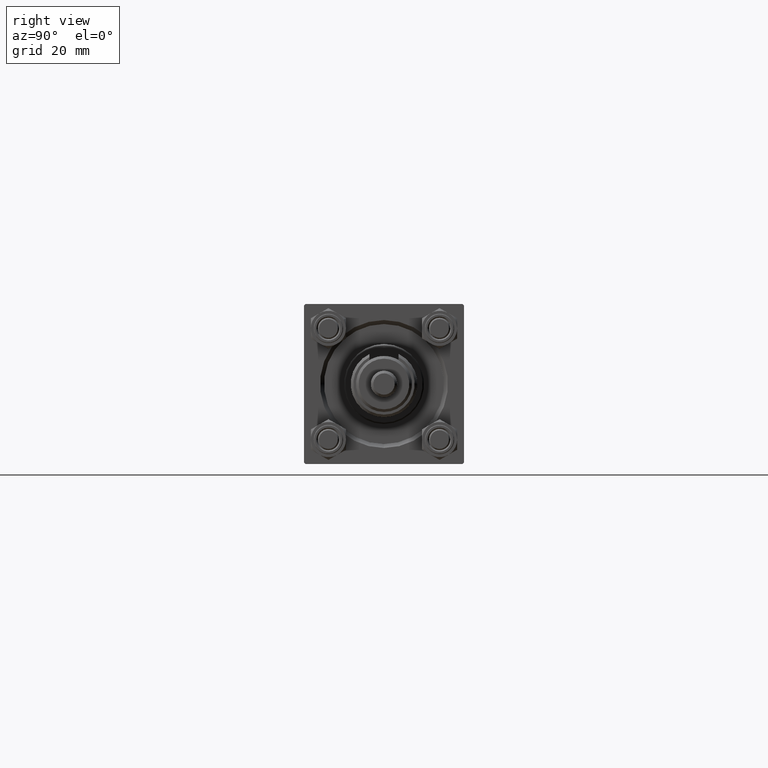
[diagram: clean part render]
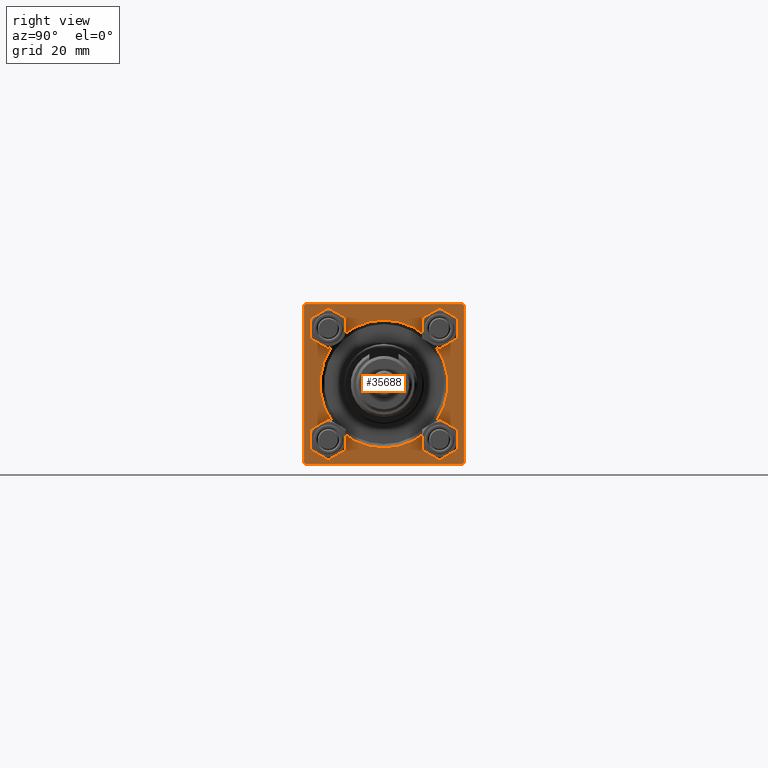
[diagram: same view with one face highlighted and labeled with its STEP entity id]
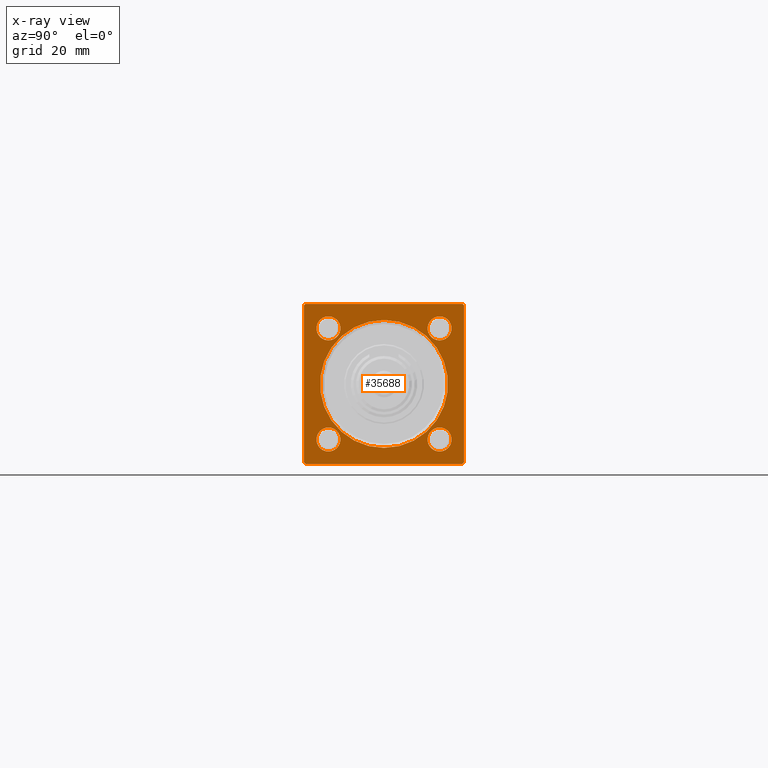
[diagram: x-ray of the same camera — body ghosted, the highlighted face saturated]
A machine part, right view. The second image highlights one B-rep face of the part: STEP entity #35688.
The next image is the same camera in x-ray: the body ghosted, the highlighted face saturated — about 0% of this face is hidden behind the body in this view.
In plain terms, the highlighted planar face has unit normal (-1, 0, 0).
Its self-contained STEP definition (entity closure, byte-faithful):
#6 = VECTOR ( 'NONE', #2890, 1000.000000000000000 ) ;
#231 = DIRECTION ( 'NONE',  ( 0.000000000000000000, 0.000000000000000000, 1.000000000000000000 ) ) ;
#752 = CIRCLE ( 'NONE', #51815, 4.500000000000017764 ) ;
#880 = FACE_OUTER_BOUND ( 'NONE', #17036, .T. ) ;
#1178 = ORIENTED_EDGE ( 'NONE', *, *, #51516, .T. ) ;
#1247 = ORIENTED_EDGE ( 'NONE', *, *, #49751, .T. ) ;
#1608 = EDGE_LOOP ( 'NONE', ( #2438, #12824 ) ) ;
#1668 = VERTEX_POINT ( 'NONE', #22125 ) ;
#1693 = CARTESIAN_POINT ( 'NONE',  ( 148.0000000000000000, 30.00000000000000000, 30.00000000000000000 ) ) ;
#1985 = VERTEX_POINT ( 'NONE', #11122 ) ;
#2055 = ORIENTED_EDGE ( 'NONE', *, *, #8070, .T. ) ;
#2438 = ORIENTED_EDGE ( 'NONE', *, *, #18651, .T. ) ;
#2779 = LINE ( 'NONE', #27803, #5405 ) ;
#2890 = DIRECTION ( 'NONE',  ( 0.000000000000000000, 0.000000000000000000, -1.000000000000000000 ) ) ;
#2899 = AXIS2_PLACEMENT_3D ( 'NONE', #42911, #38909, #4211 ) ;
#3540 = ORIENTED_EDGE ( 'NONE', *, *, #31449, .F. ) ;
#3672 = VERTEX_POINT ( 'NONE', #50950 ) ;
#3993 = ORIENTED_EDGE ( 'NONE', *, *, #41335, .T. ) ;
#4171 = VERTEX_POINT ( 'NONE', #6913 ) ;
#4211 = DIRECTION ( 'NONE',  ( 0.000000000000000000, 0.000000000000000000, 1.000000000000000000 ) ) ;
#4251 = ORIENTED_EDGE ( 'NONE', *, *, #22390, .T. ) ;
#4329 = VERTEX_POINT ( 'NONE', #17261 ) ;
#5393 = FACE_BOUND ( 'NONE', #22812, .T. ) ;
#5405 = VECTOR ( 'NONE', #23808, 1000.000000000000000 ) ;
#6882 = LINE ( 'NONE', #39391, #6 ) ;
#6913 = CARTESIAN_POINT ( 'NONE',  ( 148.0000000000000000, -20.84999999999999076, 16.34999999999998721 ) ) ;
#7591 = CARTESIAN_POINT ( 'NONE',  ( 148.0000000000000000, 20.84999999999999787, 20.85000000000000142 ) ) ;
#8070 = EDGE_CURVE ( 'NONE', #4171, #37276, #752, .T. ) ;
#8307 = CARTESIAN_POINT ( 'NONE',  ( 148.0000000000000000, 30.00000000000000000, -29.49999999999999289 ) ) ;
#8547 = CARTESIAN_POINT ( 'NONE',  ( 148.0000000000000000, -20.84999999999999076, -16.34999999999998721 ) ) ;
#9365 = CARTESIAN_POINT ( 'NONE',  ( 148.0000000000000000, -29.50000000000000000, -30.00000000000000000 ) ) ;
#9571 = AXIS2_PLACEMENT_3D ( 'NONE', #12231, #36994, #231 ) ;
#9663 = CARTESIAN_POINT ( 'NONE',  ( 148.0000000000000000, -30.00000000000000000, 29.49999999999999289 ) ) ;
#10363 = AXIS2_PLACEMENT_3D ( 'NONE', #45132, #20878, #37138 ) ;
#10472 = VECTOR ( 'NONE', #42160, 1000.000000000000114 ) ;
#10758 = AXIS2_PLACEMENT_3D ( 'NONE', #17134, #13674, #38175 ) ;
#10976 = AXIS2_PLACEMENT_3D ( 'NONE', #19153, #26622, #42896 ) ;
#11122 = CARTESIAN_POINT ( 'NONE',  ( 148.0000000000000000, 20.84999999999999787, 16.34999999999998366 ) ) ;
#11573 = EDGE_CURVE ( 'NONE', #51841, #14939, #29844, .T. ) ;
#11866 = DIRECTION ( 'NONE',  ( -1.000000000000000000, 0.000000000000000000, -0.000000000000000000 ) ) ;
#11987 = AXIS2_PLACEMENT_3D ( 'NONE', #33980, #14022, #30255 ) ;
#12124 = DIRECTION ( 'NONE',  ( 0.000000000000000000, 0.000000000000000000, 1.000000000000000000 ) ) ;
#12231 = CARTESIAN_POINT ( 'NONE',  ( 148.0000000000000000, -20.84999999999999076, 20.85000000000000497 ) ) ;
#12593 = DIRECTION ( 'NONE',  ( -1.000000000000000000, 0.000000000000000000, -0.000000000000000000 ) ) ;
#12824 = ORIENTED_EDGE ( 'NONE', *, *, #42423, .T. ) ;
#13182 = EDGE_CURVE ( 'NONE', #1668, #40264, #23784, .T. ) ;
#13214 = AXIS2_PLACEMENT_3D ( 'NONE', #19856, #11866, #12124 ) ;
#13330 = EDGE_LOOP ( 'NONE', ( #2055, #42627 ) ) ;
#13674 = DIRECTION ( 'NONE',  ( -1.000000000000000000, 0.000000000000000000, -0.000000000000000000 ) ) ;
#13736 = CIRCLE ( 'NONE', #10363, 4.500000000000017764 ) ;
#14022 = DIRECTION ( 'NONE',  ( -1.000000000000000000, 0.000000000000000000, -0.000000000000000000 ) ) ;
#14143 = CARTESIAN_POINT ( 'NONE',  ( 148.0000000000000000, -20.84999999999999076, 25.35000000000002274 ) ) ;
#14327 = CARTESIAN_POINT ( 'NONE',  ( 148.0000000000000000, -29.50000000000000000, -30.00000000000000000 ) ) ;
#14366 = AXIS2_PLACEMENT_3D ( 'NONE', #7591, #39583, #28098 ) ;
#14618 = CARTESIAN_POINT ( 'NONE',  ( 148.0000000000000000, 29.50000000000000000, 30.00000000000000000 ) ) ;
#14939 = VERTEX_POINT ( 'NONE', #8547 ) ;
#15295 = EDGE_CURVE ( 'NONE', #37276, #4171, #49552, .T. ) ;
#15762 = ORIENTED_EDGE ( 'NONE', *, *, #45100, .T. ) ;
#15944 = CARTESIAN_POINT ( 'NONE',  ( 148.0000000000000000, -29.50000000000000000, 29.99999999999999289 ) ) ;
#16051 = ORIENTED_EDGE ( 'NONE', *, *, #20311, .T. ) ;
#16988 = CARTESIAN_POINT ( 'NONE',  ( 148.0000000000000000, 20.84999999999999787, -16.34999999999998366 ) ) ;
#17036 = EDGE_LOOP ( 'NONE', ( #50801, #16051, #44522, #44552, #3540, #25960, #1247, #3993 ) ) ;
#17068 = VECTOR ( 'NONE', #50007, 1000.000000000000000 ) ;
#17134 = CARTESIAN_POINT ( 'NONE',  ( 148.0000000000000000, 0.000000000000000000, 0.000000000000000000 ) ) ;
#17261 = CARTESIAN_POINT ( 'NONE',  ( 148.0000000000000000, 0.000000000000000000, -24.00000000000003908 ) ) ;
#17390 = VECTOR ( 'NONE', #50719, 1000.000000000000000 ) ;
#17457 = VERTEX_POINT ( 'NONE', #15944 ) ;
#17946 = LINE ( 'NONE', #1693, #17390 ) ;
#18080 = CARTESIAN_POINT ( 'NONE',  ( 148.0000000000000000, 30.00000000000000000, -29.49999999999997868 ) ) ;
#18651 = EDGE_CURVE ( 'NONE', #4329, #24180, #42033, .T. ) ;
#18786 = CARTESIAN_POINT ( 'NONE',  ( 148.0000000000000000, 0.000000000000000000, 0.000000000000000000 ) ) ;
#18946 = AXIS2_PLACEMENT_3D ( 'NONE', #18786, #27550, #35280 ) ;
#19153 = CARTESIAN_POINT ( 'NONE',  ( 148.0000000000000000, 0.000000000000000000, 0.000000000000000000 ) ) ;
#19191 = VECTOR ( 'NONE', #42872, 1000.000000000000114 ) ;
#19856 = CARTESIAN_POINT ( 'NONE',  ( 148.0000000000000000, 20.84999999999999787, 20.85000000000000142 ) ) ;
#20021 = CARTESIAN_POINT ( 'NONE',  ( 148.0000000000000000, 2.939152317953652628E-15, 24.00000000000003908 ) ) ;
#20311 = EDGE_CURVE ( 'NONE', #51247, #46895, #25088, .T. ) ;
#20381 = CIRCLE ( 'NONE', #27202, 4.500000000000017764 ) ;
#20878 = DIRECTION ( 'NONE',  ( -1.000000000000000000, 0.000000000000000000, -0.000000000000000000 ) ) ;
#21090 = CARTESIAN_POINT ( 'NONE',  ( 148.0000000000000000, -20.84999999999999076, -20.85000000000000497 ) ) ;
#21118 = PLANE ( 'NONE',  #10758 ) ;
#21554 = VERTEX_POINT ( 'NONE', #46621 ) ;
#21753 = DIRECTION ( 'NONE',  ( -0.000000000000000000, -0.7071067811865474617, -0.7071067811865474617 ) ) ;
#21921 = FACE_BOUND ( 'NONE', #13330, .T. ) ;
#22125 = CARTESIAN_POINT ( 'NONE',  ( 148.0000000000000000, 29.50000000000000000, -29.99999999999999289 ) ) ;
#22390 = EDGE_CURVE ( 'NONE', #3672, #43396, #44576, .T. ) ;
#22812 = EDGE_LOOP ( 'NONE', ( #36384, #45155 ) ) ;
#23784 = LINE ( 'NONE', #8307, #45245 ) ;
#23808 = DIRECTION ( 'NONE',  ( 0.000000000000000000, -1.000000000000000000, -1.156482317317871478E-16 ) ) ;
#24180 = VERTEX_POINT ( 'NONE', #20021 ) ;
#25088 = LINE ( 'NONE', #9365, #10472 ) ;
#25960 = ORIENTED_EDGE ( 'NONE', *, *, #30685, .T. ) ;
#26286 = LINE ( 'NONE', #47073, #17068 ) ;
#26622 = DIRECTION ( 'NONE',  ( -1.000000000000000000, 0.000000000000000000, -0.000000000000000000 ) ) ;
#26700 = EDGE_LOOP ( 'NONE', ( #4251, #1178 ) ) ;
#26813 = CARTESIAN_POINT ( 'NONE',  ( 148.0000000000000000, -30.00000000000000000, 29.49999999999999289 ) ) ;
#26950 = EDGE_CURVE ( 'NONE', #1668, #46895, #2779, .T. ) ;
#27202 = AXIS2_PLACEMENT_3D ( 'NONE', #21090, #42162, #38425 ) ;
#27550 = DIRECTION ( 'NONE',  ( -1.000000000000000000, 0.000000000000000000, -0.000000000000000000 ) ) ;
#27800 = DIRECTION ( 'NONE',  ( 0.000000000000000000, 0.000000000000000000, 1.000000000000000000 ) ) ;
#27803 = CARTESIAN_POINT ( 'NONE',  ( 148.0000000000000000, 30.00000000000000000, -29.99999999999999289 ) ) ;
#28098 = DIRECTION ( 'NONE',  ( 0.000000000000000000, 0.000000000000000000, 1.000000000000000000 ) ) ;
#29844 = CIRCLE ( 'NONE', #11987, 4.500000000000017764 ) ;
#29999 = LINE ( 'NONE', #26813, #32162 ) ;
#30255 = DIRECTION ( 'NONE',  ( 0.000000000000000000, 0.000000000000000000, 1.000000000000000000 ) ) ;
#30685 = EDGE_CURVE ( 'NONE', #32021, #21554, #42608, .T. ) ;
#31449 = EDGE_CURVE ( 'NONE', #32021, #40264, #17946, .T. ) ;
#32021 = VERTEX_POINT ( 'NONE', #33990 ) ;
#32162 = VECTOR ( 'NONE', #21753, 1000.000000000000114 ) ;
#32831 = CARTESIAN_POINT ( 'NONE',  ( 148.0000000000000000, -20.84999999999999076, 20.85000000000000497 ) ) ;
#33356 = EDGE_CURVE ( 'NONE', #36315, #1985, #36186, .T. ) ;
#33897 = FACE_BOUND ( 'NONE', #26700, .T. ) ;
#33980 = CARTESIAN_POINT ( 'NONE',  ( 148.0000000000000000, -20.84999999999999076, -20.85000000000000497 ) ) ;
#33990 = CARTESIAN_POINT ( 'NONE',  ( 148.0000000000000000, 30.00000000000000000, 29.50000000000000000 ) ) ;
#35280 = DIRECTION ( 'NONE',  ( 0.000000000000000000, 0.000000000000000000, 1.000000000000000000 ) ) ;
#35294 = CARTESIAN_POINT ( 'NONE',  ( 148.0000000000000000, 20.84999999999999787, 25.35000000000001918 ) ) ;
#35688 = ADVANCED_FACE ( 'NONE', ( #37380, #33897, #5393, #21921, #46439, #880 ), #21118, .F. ) ;
#35769 = VERTEX_POINT ( 'NONE', #9663 ) ;
#36186 = CIRCLE ( 'NONE', #13214, 4.500000000000017764 ) ;
#36315 = VERTEX_POINT ( 'NONE', #35294 ) ;
#36384 = ORIENTED_EDGE ( 'NONE', *, *, #40674, .T. ) ;
#36483 = CIRCLE ( 'NONE', #10976, 24.00000000000003908 ) ;
#36994 = DIRECTION ( 'NONE',  ( -1.000000000000000000, 0.000000000000000000, -0.000000000000000000 ) ) ;
#37138 = DIRECTION ( 'NONE',  ( 0.000000000000000000, 0.000000000000000000, 1.000000000000000000 ) ) ;
#37276 = VERTEX_POINT ( 'NONE', #14143 ) ;
#37380 = FACE_BOUND ( 'NONE', #47995, .T. ) ;
#38175 = DIRECTION ( 'NONE',  ( -0.000000000000000000, 0.000000000000000000, 1.000000000000000000 ) ) ;
#38425 = DIRECTION ( 'NONE',  ( 0.000000000000000000, 0.000000000000000000, 1.000000000000000000 ) ) ;
#38909 = DIRECTION ( 'NONE',  ( -1.000000000000000000, 0.000000000000000000, -0.000000000000000000 ) ) ;
#39391 = CARTESIAN_POINT ( 'NONE',  ( 148.0000000000000000, -30.00000000000000000, 29.99999999999999289 ) ) ;
#39583 = DIRECTION ( 'NONE',  ( -1.000000000000000000, 0.000000000000000000, -0.000000000000000000 ) ) ;
#40264 = VERTEX_POINT ( 'NONE', #18080 ) ;
#40674 = EDGE_CURVE ( 'NONE', #1985, #36315, #48358, .T. ) ;
#41335 = EDGE_CURVE ( 'NONE', #17457, #35769, #29999, .T. ) ;
#42033 = CIRCLE ( 'NONE', #18946, 24.00000000000003908 ) ;
#42160 = DIRECTION ( 'NONE',  ( 0.000000000000000000, 0.7071067811865474617, -0.7071067811865474617 ) ) ;
#42162 = DIRECTION ( 'NONE',  ( -1.000000000000000000, 0.000000000000000000, -0.000000000000000000 ) ) ;
#42423 = EDGE_CURVE ( 'NONE', #24180, #4329, #36483, .T. ) ;
#42608 = LINE ( 'NONE', #14618, #19191 ) ;
#42627 = ORIENTED_EDGE ( 'NONE', *, *, #15295, .T. ) ;
#42872 = DIRECTION ( 'NONE',  ( 0.000000000000000000, -0.7071067811865474617, 0.7071067811865474617 ) ) ;
#42896 = DIRECTION ( 'NONE',  ( 0.000000000000000000, 0.000000000000000000, 1.000000000000000000 ) ) ;
#42911 = CARTESIAN_POINT ( 'NONE',  ( 148.0000000000000000, 20.84999999999999787, -20.85000000000000142 ) ) ;
#43396 = VERTEX_POINT ( 'NONE', #16988 ) ;
#43643 = CARTESIAN_POINT ( 'NONE',  ( 148.0000000000000000, -30.00000000000000000, -29.49999999999998579 ) ) ;
#44522 = ORIENTED_EDGE ( 'NONE', *, *, #26950, .F. ) ;
#44552 = ORIENTED_EDGE ( 'NONE', *, *, #13182, .T. ) ;
#44576 = CIRCLE ( 'NONE', #2899, 4.500000000000017764 ) ;
#45076 = DIRECTION ( 'NONE',  ( -0.000000000000000000, 0.7071067811865474617, 0.7071067811865474617 ) ) ;
#45100 = EDGE_CURVE ( 'NONE', #14939, #51841, #20381, .T. ) ;
#45132 = CARTESIAN_POINT ( 'NONE',  ( 148.0000000000000000, 20.84999999999999787, -20.85000000000000142 ) ) ;
#45155 = ORIENTED_EDGE ( 'NONE', *, *, #33356, .T. ) ;
#45245 = VECTOR ( 'NONE', #45076, 1000.000000000000114 ) ;
#46188 = ORIENTED_EDGE ( 'NONE', *, *, #11573, .T. ) ;
#46439 = FACE_BOUND ( 'NONE', #1608, .T. ) ;
#46621 = CARTESIAN_POINT ( 'NONE',  ( 148.0000000000000000, 29.50000000000000000, 30.00000000000000000 ) ) ;
#46895 = VERTEX_POINT ( 'NONE', #14327 ) ;
#47073 = CARTESIAN_POINT ( 'NONE',  ( 148.0000000000000000, 30.00000000000000000, 30.00000000000000000 ) ) ;
#47995 = EDGE_LOOP ( 'NONE', ( #46188, #15762 ) ) ;
#48358 = CIRCLE ( 'NONE', #14366, 4.500000000000017764 ) ;
#48563 = EDGE_CURVE ( 'NONE', #35769, #51247, #6882, .T. ) ;
#49552 = CIRCLE ( 'NONE', #9571, 4.500000000000017764 ) ;
#49751 = EDGE_CURVE ( 'NONE', #21554, #17457, #26286, .T. ) ;
#50007 = DIRECTION ( 'NONE',  ( 0.000000000000000000, -1.000000000000000000, -1.156482317317871478E-16 ) ) ;
#50719 = DIRECTION ( 'NONE',  ( 0.000000000000000000, 0.000000000000000000, -1.000000000000000000 ) ) ;
#50801 = ORIENTED_EDGE ( 'NONE', *, *, #48563, .T. ) ;
#50950 = CARTESIAN_POINT ( 'NONE',  ( 148.0000000000000000, 20.84999999999999787, -25.35000000000001918 ) ) ;
#51247 = VERTEX_POINT ( 'NONE', #43643 ) ;
#51516 = EDGE_CURVE ( 'NONE', #43396, #3672, #13736, .T. ) ;
#51815 = AXIS2_PLACEMENT_3D ( 'NONE', #32831, #12593, #27800 ) ;
#51841 = VERTEX_POINT ( 'NONE', #52544 ) ;
#52544 = CARTESIAN_POINT ( 'NONE',  ( 148.0000000000000000, -20.84999999999999076, -25.35000000000002274 ) ) ;